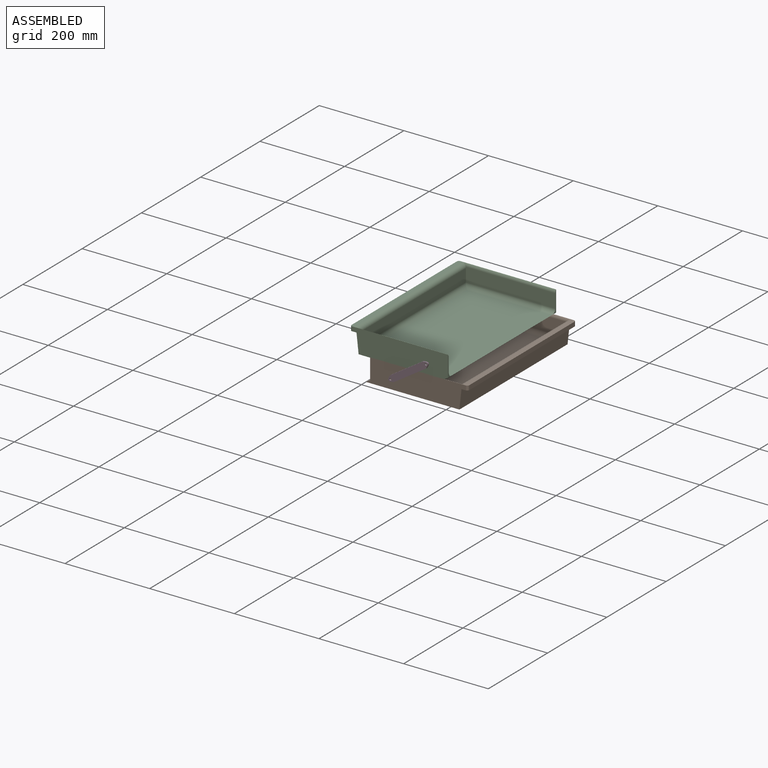
[diagram: assembled view]
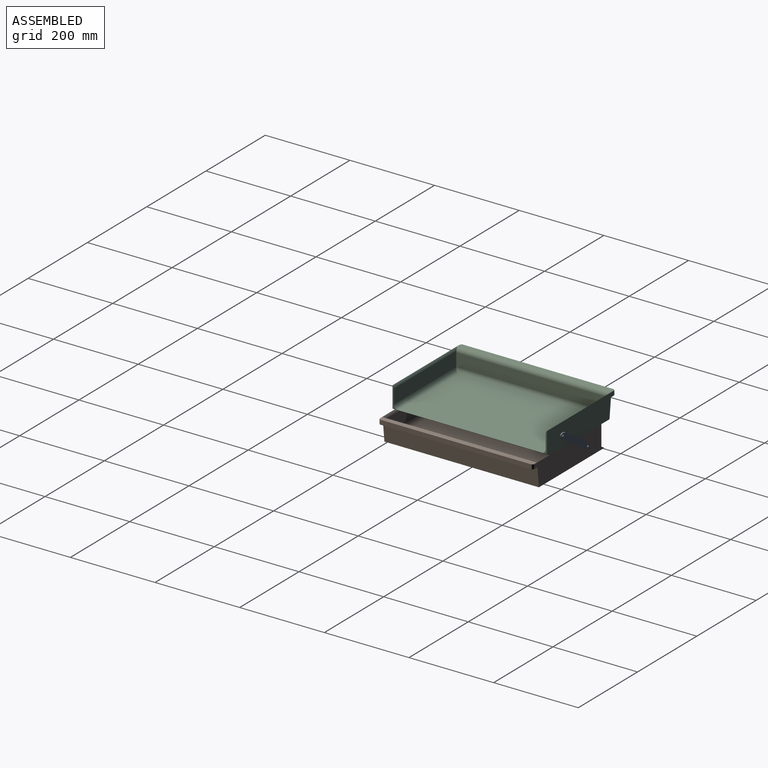
[diagram: assembled view, second angle]
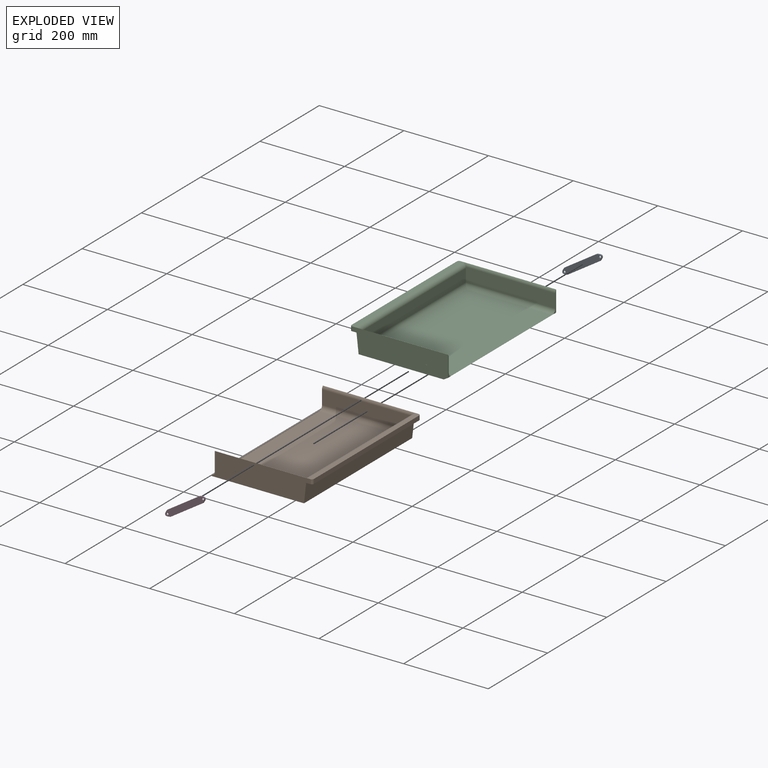
[diagram: exploded view]
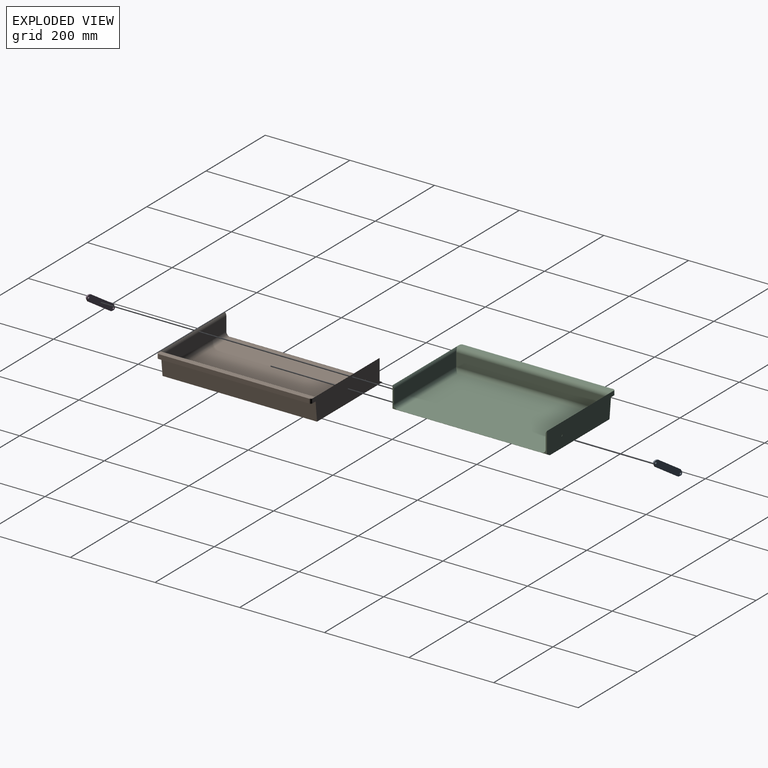
[diagram: exploded view, second angle]
ASSEMBLY  parts=4 mates=4
PART A: 8 faces, bbox 118.5x15x3 mm
  f0: plane 91x3mm, normal (0,1,0), area 273mm2, adj f1,f4,f6,f7
  f1: extruded ~15x10mm, area 78.5mm2, adj f0,f2,f6,f7
  f2: plane 91x3mm, normal (0,-1,0), area 273mm2, adj f1,f4,f6,f7
  f3: cylinder r=2.5mm len=5mm, axis (0,0,-1), area 47.1mm2, adj f6,f7
  f4: extruded ~15x10mm, area 78.5mm2, adj f0,f2,f6,f7
  f5: cylinder r=2.5mm len=5mm, axis (0,0,-1), area 47.1mm2, adj f6,f7
  f6: plane 118.5x15mm, normal (0,0,1), area 1525.7mm2, adj f0,f1,f2,f3,f4,f5
  f7: plane 118.5x15mm, normal (0,0,-1), area 1525.7mm2, adj f0,f1,f2,f3,f4,f5
PART B: 27 faces, bbox 241x365x55.5 mm
  f0: plane 49.5x9.88mm, normal (-1,0,0), area 159.4mm2, adj f4,f9,f21,f24,f26
  f1: plane 49.5x9.88mm, normal (-1,0,0), area 159.4mm2, adj f5,f7,f19,f22,f26
  f2: plane 355x10.5mm, normal (1,0,0), area 3727.5mm2, adj f6,f11,f13,f14
  f3: plane 365x221mm, normal (0,0,-1), area 80665mm2, adj f4,f5,f12,f26
  f4: plane 236x55.5mm, normal (0,-1,0), area 11990.9mm2, adj f0,f3,f6,f11,f12,f13,f15,f21
  f5: plane 236x55.5mm, normal (0,1,0), area 11990.9mm2, adj f1,f3,f6,f11,f12,f14,f17,f19
  f6: plane 365x10mm, normal (0,0,1), area 3639.3mm2, adj f2,f4,f5,f13,f14,f20
  f7: plane 211.42x32.86mm, normal (0,-1,0), area 6933.6mm2, adj f1,f8,f19,f20,f22
  f8: plane 359x30mm, normal (-1,0,0), area 10770mm2, adj f7,f9,f20,f23
  f9: plane 211.42x32.86mm, normal (0,1,0), area 6933.6mm2, adj f0,f8,f20,f21,f24
  f10: plane 339x201mm, normal (0,0,1), area 68139mm2, adj f22,f23,f24,f25
  f11: plane 365x15mm, normal (0,0,-1), area 5464.3mm2, adj f2,f4,f5,f12,f13,f14
  f12: plane 365x45mm, normal (0.99,0,-0.11), area 16526.1mm2, adj f3,f4,f5,f11
  f13: cylinder r=5mm len=10.5mm, axis (0,0,1), area 82.5mm2, adj f2,f4,f6,f11
  f14: cylinder r=5mm len=10.5mm, axis (0,0,-1), area 82.5mm2, adj f2,f5,f6,f11
  f15: cylinder r=2.5mm len=5mm, axis (0,-1,0), area 7.9mm2, adj f4,f16
  f16: plane 5x5mm, normal (0,-1,0), area 19.6mm2, adj f15
  f17: cylinder r=2.5mm len=5mm, axis (0,1,0), area 7.9mm2, adj f5,f18
  f18: plane 5x5mm, normal (0,1,0), area 19.6mm2, adj f17
  f19: cylinder r=10mm len=221mm, axis (-1,0,0), area 1703.6mm2, adj f1,f5,f7,f20
  f20: cylinder r=10mm len=365mm, axis (0,1,0), area 5676.8mm2, adj f6,f7,f8,f9,f19,f21
  f21: cylinder r=10mm len=221mm, axis (-1,0,0), area 1703.6mm2, adj f0,f4,f9,f20
  f22: cylinder r=10mm len=211mm, axis (1,0,0), area 3257.3mm2, adj f1,f7,f10,f23,f25
  f23: cylinder r=10mm len=359mm, axis (0,-1,0), area 5525mm2, adj f8,f10,f22,f24
  f24: cylinder r=10mm len=211mm, axis (-1,0,0), area 3257.3mm2, adj f0,f9,f10,f23,f25
  f25: plane 345.25x0.5mm, normal (1,0,0), area 171.6mm2, adj f10,f22,f24,f26
  f26: plane 365x10mm, normal (-0.51,0,0.86), area 4256.6mm2, adj f0,f1,f3,f4,f5,f25
PART C: 26 faces, bbox 231x365x55.5 mm
  f0: plane 226x55.5mm, normal (0,-1,0), area 11932.1mm2, adj f2,f8,f9,f11,f12,f13,f15,f19
  f1: plane 49.62x10.27mm, normal (1,0,0), area 160.6mm2, adj f3,f4,f19,f20,f23
  f2: plane 49.62x10.27mm, normal (1,0,0), area 160.6mm2, adj f0,f5,f19,f21,f24
  f3: plane 226x55.5mm, normal (0,1,0), area 11932.1mm2, adj f1,f8,f9,f11,f12,f14,f17,f19
  f4: plane 211.42x32.86mm, normal (0,-1,0), area 6933.6mm2, adj f1,f10,f20,f22,f23
  f5: plane 211.42x32.86mm, normal (0,1,0), area 6933.6mm2, adj f2,f10,f21,f22,f24
  f6: plane 339x200.37mm, normal (0,0,1), area 67924.3mm2, adj f19,f23,f24,f25
  f7: plane 355x10.5mm, normal (-1,0,0), area 3727.5mm2, adj f9,f11,f13,f14
  f8: plane 365x201.2mm, normal (0,0,-1), area 73438mm2, adj f0,f3,f12,f19
  f9: plane 365x10mm, normal (0,0,1), area 3639.3mm2, adj f0,f3,f7,f13,f14,f22
  f10: plane 359x30mm, normal (1,0,0), area 10770mm2, adj f4,f5,f22,f25
  f11: plane 365x15mm, normal (0,0,-1), area 5464.3mm2, adj f0,f3,f7,f12,f13,f14
  f12: plane 365x45mm, normal (-0.99,0,-0.11), area 16526.1mm2, adj f0,f3,f8,f11
  f13: cylinder r=5mm len=10.5mm, axis (0,0,1), area 82.5mm2, adj f0,f7,f9,f11
  f14: cylinder r=5mm len=10.5mm, axis (0,0,-1), area 82.5mm2, adj f3,f7,f9,f11
  f15: cylinder r=2.5mm len=5mm, axis (0,-1,0), area 7.9mm2, adj f0,f16
  f16: plane 5x5mm, normal (0,-1,0), area 19.6mm2, adj f15
  f17: cylinder r=2.5mm len=5mm, axis (0,1,0), area 7.9mm2, adj f3,f18
  f18: plane 5x5mm, normal (0,1,0), area 19.6mm2, adj f17
  f19: plane 365x9.8mm, normal (0.51,0,-0.86), area 3918.4mm2, adj f0,f1,f2,f3,f6,f8,f23,f24
  f20: cylinder r=10mm len=221mm, axis (-1,0,0), area 1703.6mm2, adj f1,f3,f4,f22
  f21: cylinder r=10mm len=221mm, axis (-1,0,0), area 1703.6mm2, adj f0,f2,f5,f22
  f22: cylinder r=10mm len=365mm, axis (0,1,0), area 5676.8mm2, adj f4,f5,f9,f10,f20,f21
  f23: cylinder r=10mm len=211mm, axis (-1,0,0), area 3256.1mm2, adj f1,f4,f6,f19,f25
  f24: cylinder r=10mm len=211mm, axis (1,0,0), area 3256.1mm2, adj f2,f5,f6,f19,f25
  f25: cylinder r=10mm len=359mm, axis (0,-1,0), area 5525mm2, adj f6,f10,f23,f24
PART D: same geometry as A
PLACE A rot(axis=(0.2,0.69,-0.69),156.9deg) t=(186.4,370.64,19.08)mm
PLACE B t=(-212.53,2.64,21.9)mm fixed
PLACE C t=(-28.43,2.64,76.32)mm
PLACE D rot(axis=(-0.2,0.69,0.69),156.9deg) t=(88.77,-0.36,164.37)mm
MATE revolute A.f5 <-> C.f17  axis (0,-1,0) through (152.57,367.64,104.07)mm
MATE revolute D.f3 <-> B.f15  axis (0,-1,0) through (68.67,2.64,44.4)mm
MATE revolute A.f3 <-> B.f17  axis (0,-1,0) through (68.67,367.64,49.65)mm
MATE revolute D.f5 <-> C.f15  axis (0,-1,0) through (152.57,2.64,98.82)mm
